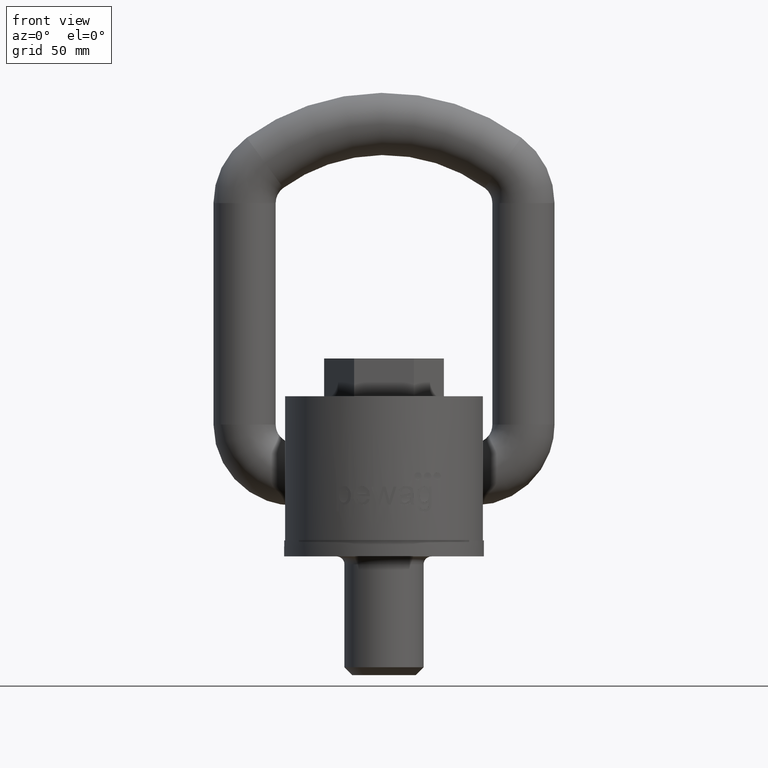
[diagram: clean part render]
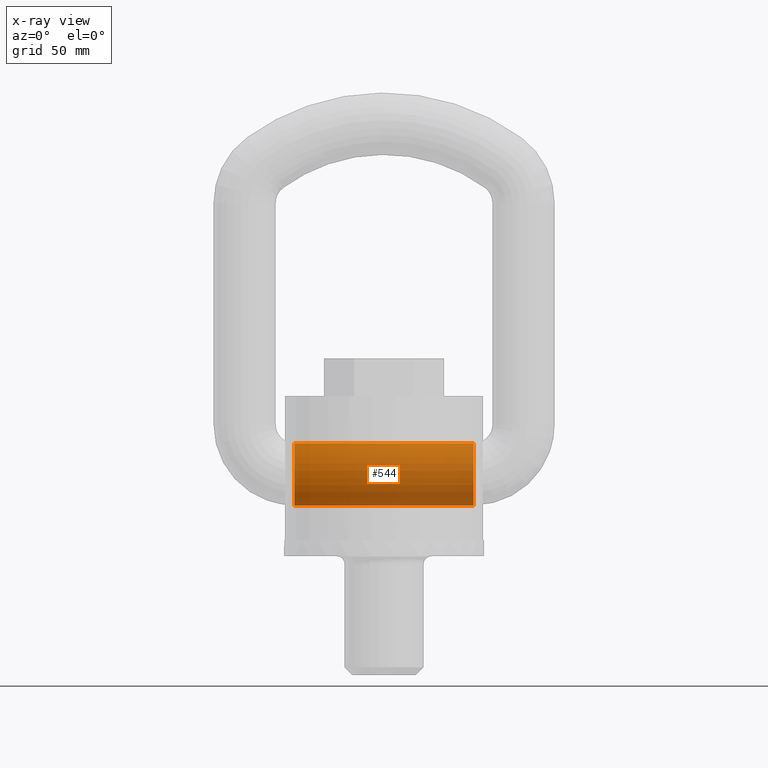
[diagram: x-ray — body ghosted, one internal face saturated and labeled with its STEP entity id]
A machine part, front view, then the same camera in x-ray: the body is ghosted and one INTERNAL B-rep face — a face not visible from any outside direction — is saturated and labeled: STEP entity #544.
In plain terms, the highlighted cylindrical surface (bore or boss wall) has radius 16.5 mm, axis along (1, 0, 0).
Its self-contained STEP definition (entity closure, byte-faithful):
#544=ADVANCED_FACE('',(#625,#626),#566,.T.);
#566=CYLINDRICAL_SURFACE('',#2621,16.5);
#625=FACE_BOUND('',#791,.T.);
#626=FACE_BOUND('',#792,.T.);
#791=EDGE_LOOP('',(#1771));
#792=EDGE_LOOP('',(#1772));
#1147=CIRCLE('',#2617,16.5);
#1149=CIRCLE('',#2620,16.5);
#1771=ORIENTED_EDGE('',*,*,#2309,.T.);
#1772=ORIENTED_EDGE('',*,*,#2307,.F.);
#1992=VERTEX_POINT('',#5106);
#1994=VERTEX_POINT('',#5111);
#2307=EDGE_CURVE('',#1992,#1992,#1147,.T.);
#2309=EDGE_CURVE('',#1994,#1994,#1149,.T.);
#2617=AXIS2_PLACEMENT_3D('',#5105,#3066,#3067);
#2620=AXIS2_PLACEMENT_3D('',#5110,#3072,#3073);
#2621=AXIS2_PLACEMENT_3D('',#5112,#3074,#3075);
#3066=DIRECTION('',(1.,0.,-6.71855003501204E-16));
#3067=DIRECTION('',(-8.41078048958452E-16,0.,-1.));
#3072=DIRECTION('',(1.,0.,-6.71855003501204E-16));
#3073=DIRECTION('',(-8.41078048958452E-16,0.,-1.));
#3074=DIRECTION('',(1.,0.,0.));
#3075=DIRECTION('',(0.,0.,-1.));
#5105=CARTESIAN_POINT('',(47.5,51.,35.));
#5106=CARTESIAN_POINT('',(47.4999999999999,51.,18.4999999999999));
#5110=CARTESIAN_POINT('',(-47.5000000000001,51.,35.));
#5111=CARTESIAN_POINT('',(-47.5000000000001,51.,18.4999999999999));
#5112=CARTESIAN_POINT('',(-47.5000000000001,51.,35.));